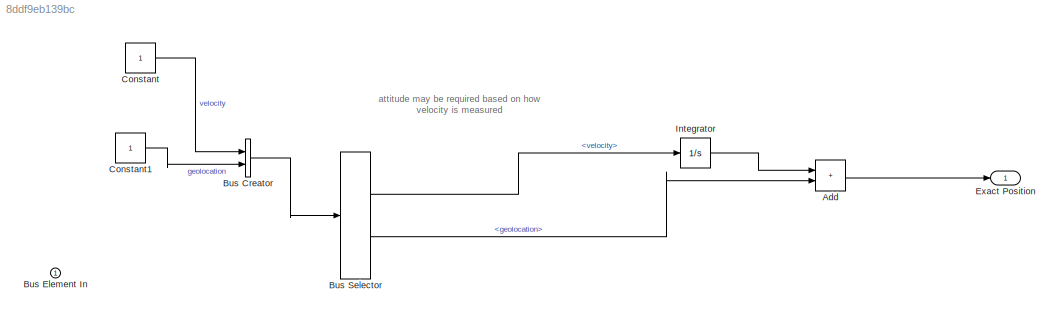
MODEL slx_8ddf9eb139bc
KIND model
CONFIG AbsTol = auto
CONFIG EnableMultiTasking = off
CONFIG FixedStep = auto
CONFIG MaxStep = auto
CONFIG MinStep = auto
CONFIG RelTol = 1e-3
CONFIG SampleTimeConstraint = Unconstrained
CONFIG SolverName = VariableStepAuto
CONFIG StartTime = 0.0
CONFIG StopTime = 10.0
BLOCK [Sum] Add
  IconShape = rectangular
  Ports = [2, 1]
BLOCK [BusCreator] Bus Creator
  DisplayOption = bar
  InheritFromInputs = on
  Inputs = 2
  Ports = [2, 1]
BLOCK [Inport] Bus Element In
BLOCK [BusSelector] Bus Selector
  OutputSignals = velocity,geolocation
  Ports = [1, 2]
BLOCK [Constant] Constant
BLOCK [Constant] Constant1
BLOCK [Outport] Exact Position
BLOCK [Integrator] Integrator
  Ports = [1, 1]
ANNOTATION (root): attitude may be required based on how velocity is measured
LINE Add:1 -> Exact Position:1
LINE Bus Creator:1 -> Bus Selector:1
LINE Bus Selector:1 -> Integrator:1
LINE Bus Selector:2 -> Add:2
LINE Constant1:1 -> Bus Creator:2
LINE Constant:1 -> Bus Creator:1
LINE Integrator:1 -> Add:1
